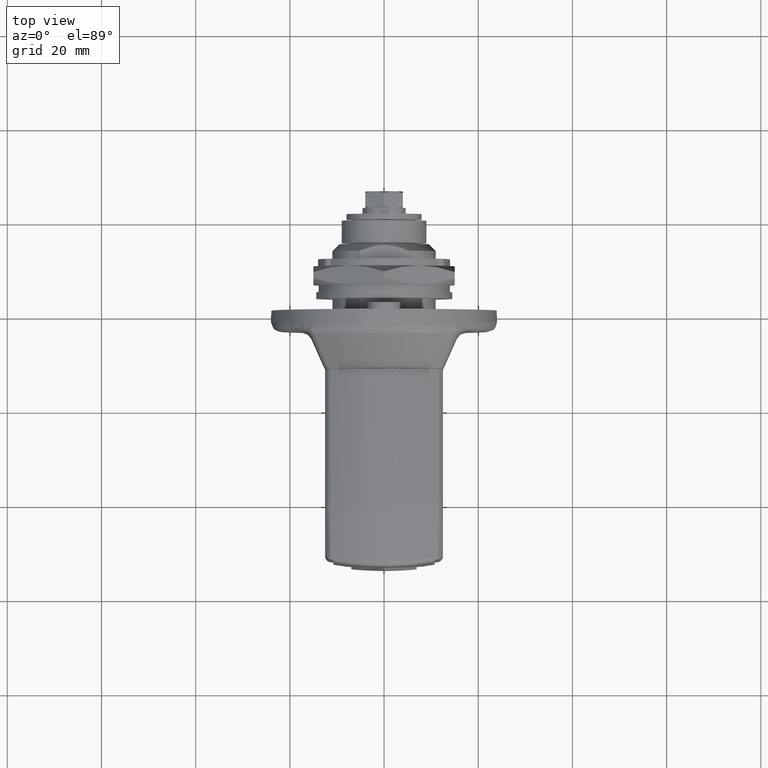
[diagram: clean part render]
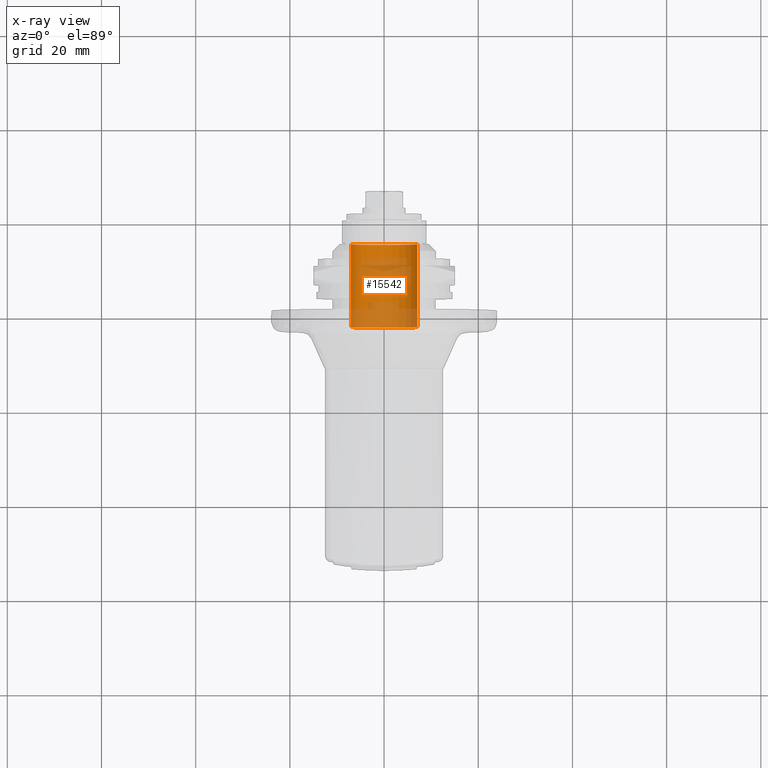
[diagram: x-ray — body ghosted, one internal face saturated and labeled with its STEP entity id]
A machine part, top view, then the same camera in x-ray: the body is ghosted and one INTERNAL B-rep face — a face not visible from any outside direction — is saturated and labeled: STEP entity #15542.
In plain terms, the highlighted face is a freeform B-spline surface patch.
Its self-contained STEP definition (entity closure, byte-faithful):
#15440=CARTESIAN_POINT('',(14.540000000000008,7.000717160863847,0.832141354330147));
#15441=CARTESIAN_POINT('',(14.540000000000003,7.024532688912669,0.631783836897743));
#15442=CARTESIAN_POINT('',(14.539999999999999,7.036850328874159,0.430392203720742));
#15443=CARTESIAN_POINT('',(14.539999999999997,7.467242532594901,-6.606458125153417));
#15444=CARTESIAN_POINT('',(14.539999999999999,0.430392203720742,-7.036850328874159));
#15445=CARTESIAN_POINT('',(14.539999999999997,-6.606458125153417,-7.467242532594901));
#15446=CARTESIAN_POINT('',(14.539999999999999,-7.036850328874159,-0.430392203720742));
#15447=CARTESIAN_POINT('',(-3.951000000000003,7.000717160863847,0.832141354330147));
#15448=CARTESIAN_POINT('',(-3.951000000000002,7.024532688912669,0.631783836897743));
#15449=CARTESIAN_POINT('',(-3.951000000000002,7.036850328874159,0.430392203720742));
#15450=CARTESIAN_POINT('',(-3.951000000000002,7.467242532594901,-6.606458125153417));
#15451=CARTESIAN_POINT('',(-3.951000000000002,0.430392203720742,-7.036850328874159));
#15452=CARTESIAN_POINT('',(-3.951000000000002,-6.606458125153417,-7.467242532594901));
#15453=CARTESIAN_POINT('',(-3.951000000000002,-7.036850328874159,-0.430392203720742));
#15461=(BOUNDED_SURFACE()B_SPLINE_SURFACE(2,1,((#15440,#15447),(#15441,#15448),(#15442,#15449),(#15443,#15450),(#15444,#15451),(#15445,#15452),(#15446,#15453)),.UNSPECIFIED.,.F.,.F.,.U.)B_SPLINE_SURFACE_WITH_KNOTS((3,2,2,3),(2,2),(0.0,0.467232898356852,12.148055357278130,23.828877816199402),(0.0,18.491000000000010),.UNSPECIFIED.)GEOMETRIC_REPRESENTATION_ITEM()RATIONAL_B_SPLINE_SURFACE(((0.977505800795127,0.977505800795127),(0.988284271247462,0.988284271247462),(1.0,1.0),(0.707106781186548,0.707106781186548),(1.0,1.0),(0.707106781186548,0.707106781186548),(1.0,1.0)))REPRESENTATION_ITEM('')SURFACE());
#15462=CARTESIAN_POINT('',(-3.500000000000000,7.000717160816542,0.832141354728121));
#15463=VERTEX_POINT('',#15462);
#15464=CARTESIAN_POINT('',(-3.500000000000000,0.0,-7.050000000000000));
#15465=VERTEX_POINT('',#15464);
#15466=CARTESIAN_POINT('',(-3.500000000000000,7.000717160816542,0.832141354728121));
#15467=CARTESIAN_POINT('',(-3.500000000000000,7.050000000000000,0.417530043948147));
#15468=CARTESIAN_POINT('',(-3.500000000000000,7.050000000000000,0.0));
#15469=CARTESIAN_POINT('',(-3.499999999999999,7.050000000000000,-7.050000000000000));
#15470=CARTESIAN_POINT('',(-3.500000000000000,0.0,-7.050000000000000));
#15478=(BOUNDED_CURVE()B_SPLINE_CURVE(2,(#15466,#15467,#15468,#15469,#15470),.UNSPECIFIED.,.F.,.U.)B_SPLINE_CURVE_WITH_KNOTS((3,2,3),(0.229562473496429,0.250000000000000,0.500000000000000),.UNSPECIFIED.)CURVE()GEOMETRIC_REPRESENTATION_ITEM()RATIONAL_B_SPLINE_CURVE((0.956026754150224,0.976055948311136,1.0,0.707106781186548,1.0))REPRESENTATION_ITEM(''));
#15479=EDGE_CURVE('',#15463,#15465,#15478,.T.);
#15480=ORIENTED_EDGE('',*,*,#15479,.T.);
#15481=CARTESIAN_POINT('',(-3.500000000000000,-7.036850328846429,-0.430392204174156));
#15482=VERTEX_POINT('',#15481);
#15483=CARTESIAN_POINT('',(-3.500000000000000,0.0,-7.050000000000000));
#15484=CARTESIAN_POINT('',(-3.500000000000000,-6.631977770828864,-7.050000000000000));
#15485=CARTESIAN_POINT('',(-3.500000000000000,-7.036850328846430,-0.430392204174156));
#15493=(BOUNDED_CURVE()B_SPLINE_CURVE(2,(#15483,#15484,#15485),.UNSPECIFIED.,.F.,.U.)B_SPLINE_CURVE_WITH_KNOTS((3,3),(0.500000000000000,0.739332962219732),.UNSPECIFIED.)CURVE()GEOMETRIC_REPRESENTATION_ITEM()RATIONAL_B_SPLINE_CURVE((1.0,0.719603993309218,0.976072041625544))REPRESENTATION_ITEM(''));
#15494=EDGE_CURVE('',#15465,#15482,#15493,.T.);
#15495=ORIENTED_EDGE('',*,*,#15494,.T.);
#15496=CARTESIAN_POINT('',(14.100000000000000,-7.036850328846429,-0.430392204174159));
#15497=VERTEX_POINT('',#15496);
#15498=CARTESIAN_POINT('',(14.100000000000000,-7.036850328846429,-0.430392204174159));
#15499=CARTESIAN_POINT('',(-3.500000000000000,-7.036850328846429,-0.430392204174156));
#15500=QUASI_UNIFORM_CURVE('',1,(#15498,#15499),.UNSPECIFIED.,.F.,.U.);
#15501=EDGE_CURVE('',#15497,#15482,#15500,.T.);
#15502=ORIENTED_EDGE('',*,*,#15501,.F.);
#15503=CARTESIAN_POINT('',(14.100000000000000,0.0,-7.050000000000000));
#15504=VERTEX_POINT('',#15503);
#15505=CARTESIAN_POINT('',(14.100000000000000,0.0,-7.050000000000000));
#15506=CARTESIAN_POINT('',(14.100000000000003,-6.631977770828864,-7.050000000000000));
#15507=CARTESIAN_POINT('',(14.099999999999998,-7.036850328846430,-0.430392204174158));
#15515=(BOUNDED_CURVE()B_SPLINE_CURVE(2,(#15505,#15506,#15507),.UNSPECIFIED.,.F.,.U.)B_SPLINE_CURVE_WITH_KNOTS((3,3),(0.500000000000000,0.739332962219732),.UNSPECIFIED.)CURVE()GEOMETRIC_REPRESENTATION_ITEM()RATIONAL_B_SPLINE_CURVE((1.0,0.719603993309218,0.976072041625544))REPRESENTATION_ITEM(''));
#15516=EDGE_CURVE('',#15504,#15497,#15515,.T.);
#15517=ORIENTED_EDGE('',*,*,#15516,.F.);
#15518=CARTESIAN_POINT('',(14.100000000000000,7.000717160816542,0.832141354728120));
#15519=VERTEX_POINT('',#15518);
#15520=CARTESIAN_POINT('',(14.100000000000003,7.000717160816542,0.832141354728120));
#15521=CARTESIAN_POINT('',(14.100000000000005,7.050000000000000,0.417530043948147));
#15522=CARTESIAN_POINT('',(14.100000000000000,7.050000000000000,0.0));
#15523=CARTESIAN_POINT('',(14.100000000000000,7.050000000000000,-7.050000000000000));
#15524=CARTESIAN_POINT('',(14.100000000000000,0.0,-7.050000000000000));
#15532=(BOUNDED_CURVE()B_SPLINE_CURVE(2,(#15520,#15521,#15522,#15523,#15524),.UNSPECIFIED.,.F.,.U.)B_SPLINE_CURVE_WITH_KNOTS((3,2,3),(0.229562473496429,0.250000000000000,0.500000000000000),.UNSPECIFIED.)CURVE()GEOMETRIC_REPRESENTATION_ITEM()RATIONAL_B_SPLINE_CURVE((0.956026754150224,0.976055948311136,1.0,0.707106781186548,1.0))REPRESENTATION_ITEM(''));
#15533=EDGE_CURVE('',#15519,#15504,#15532,.T.);
#15534=ORIENTED_EDGE('',*,*,#15533,.F.);
#15535=CARTESIAN_POINT('',(14.100000000000000,7.000717160816542,0.832141354728120));
#15536=CARTESIAN_POINT('',(-3.500000000000000,7.000717160816542,0.832141354728121));
#15537=QUASI_UNIFORM_CURVE('',1,(#15535,#15536),.UNSPECIFIED.,.F.,.U.);
#15538=EDGE_CURVE('',#15519,#15463,#15537,.T.);
#15539=ORIENTED_EDGE('',*,*,#15538,.T.);
#15540=EDGE_LOOP('',(#15480,#15495,#15502,#15517,#15534,#15539));
#15541=FACE_OUTER_BOUND('',#15540,.T.);
#15542=ADVANCED_FACE('',(#15541),#15461,.F.);